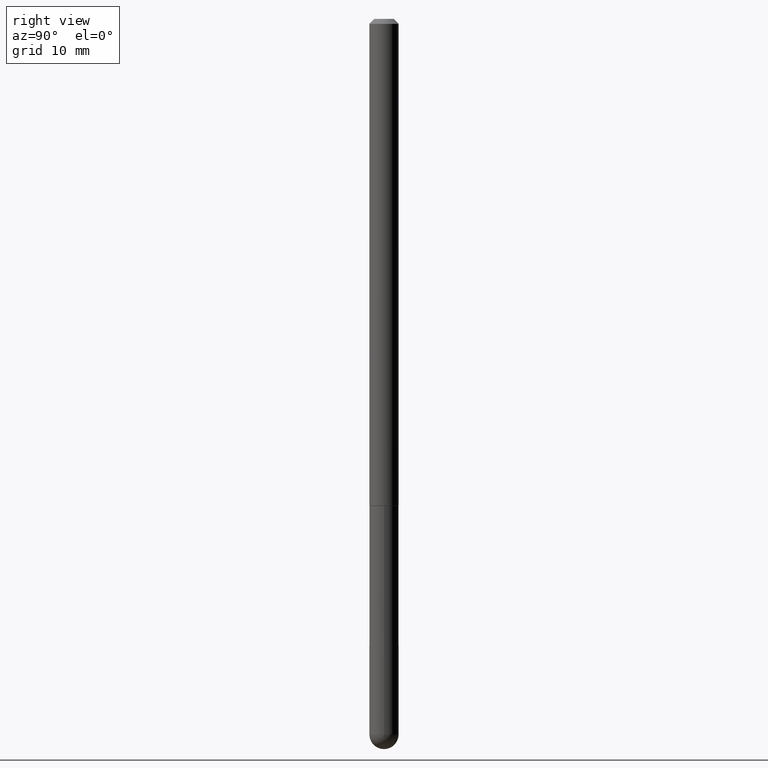
[diagram: clean part render]
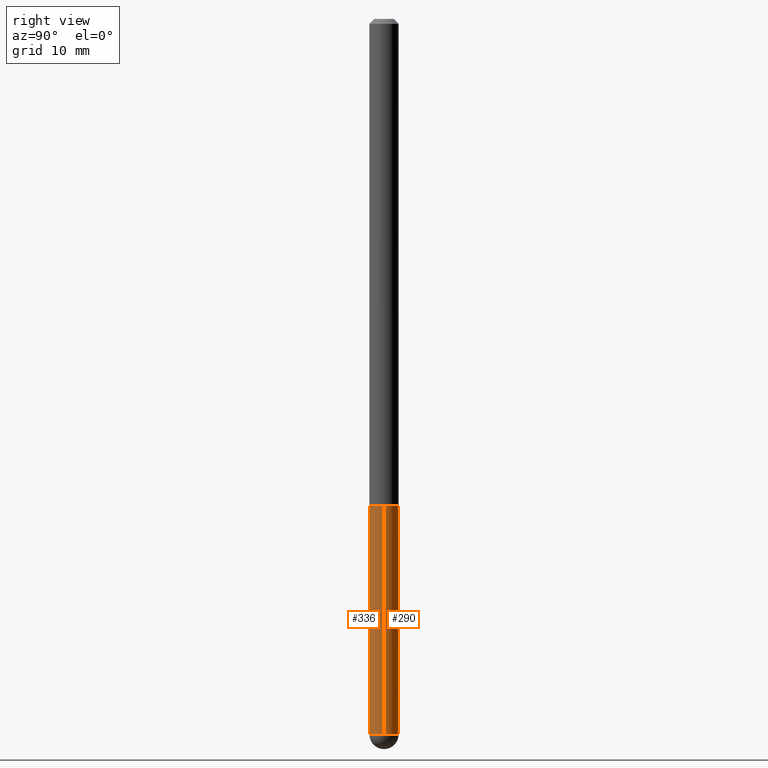
[diagram: same view with one multi-face feature highlighted, each face labeled with its STEP entity id]
A machine part, right view. The highlighted faces form ONE feature: a constant-radius fillet chain: 2 tangent blend faces with common blend radius 1.4999 mm. The faces share edges in the B-rep.
Their STEP definitions:
[1] entity #336 (Cylinder):
#2 = CARTESIAN_POINT ( 'NONE',  ( -0.05905000000000001914, 4.195754854663392958E-16, -2.904631170795522943E-30 ) ) ;
#14 = DIRECTION ( 'NONE',  ( -2.445468806185136597E-29, 3.491481338843145583E-15, 1.000000000000000000 ) ) ;
#27 = LINE ( 'NONE', #374, #154 ) ;
#30 = VERTEX_POINT ( 'NONE', #35 ) ;
#35 = CARTESIAN_POINT ( 'NONE',  ( -0.05905000000000001914, -8.068652084428701697E-15, -1.968499999999999694 ) ) ;
#40 = VECTOR ( 'NONE', #97, 39.37007874015748143 ) ;
#45 = ORIENTED_EDGE ( 'NONE', *, *, #222, .F. ) ;
#50 = AXIS2_PLACEMENT_3D ( 'NONE', #168, #115, #96 ) ;
#56 = VERTEX_POINT ( 'NONE', #151 ) ;
#75 = DIRECTION ( 'NONE',  ( 1.000000000000000000, -6.982962677686270655E-15, 0.000000000000000000 ) ) ;
#86 = DIRECTION ( 'NONE',  ( -2.445468806185136597E-29, 3.491481338843145583E-15, 1.000000000000000000 ) ) ;
#96 = DIRECTION ( 'NONE',  ( 1.000000000000000000, -6.982962677686266711E-15, 4.876176775795935793E-29 ) ) ;
#97 = DIRECTION ( 'NONE',  ( -2.445468806185136877E-29, 3.491481338843145188E-15, 1.000000000000000000 ) ) ;
#113 = DIRECTION ( 'NONE',  ( -2.445468806185136597E-29, 3.491481338843145583E-15, 1.000000000000000000 ) ) ;
#114 = ORIENTED_EDGE ( 'NONE', *, *, #396, .T. ) ;
#115 = DIRECTION ( 'NONE',  ( -2.445468806185136597E-29, 3.491481338843145583E-15, 1.000000000000000000 ) ) ;
#124 = CARTESIAN_POINT ( 'NONE',  ( -4.195754854662709114E-16, -0.05905000000001047605, -2.893749999999999822 ) ) ;
#131 = AXIS2_PLACEMENT_3D ( 'NONE', #311, #86, #407 ) ;
#138 = DIRECTION ( 'NONE',  ( 1.000000000000000000, -6.982962677686270655E-15, 0.000000000000000000 ) ) ;
#151 = CARTESIAN_POINT ( 'NONE',  ( 0.05905000000000001914, -7.285324961630105839E-15, -1.968499999999999694 ) ) ;
#154 = VECTOR ( 'NONE', #282, 39.37007874015748143 ) ;
#159 = CIRCLE ( 'NONE', #131, 0.05905000000000001914 ) ;
#168 = CARTESIAN_POINT ( 'NONE',  ( 0.000000000000000000, 0.000000000000000000, 0.000000000000000000 ) ) ;
#182 = EDGE_CURVE ( 'NONE', #356, #305, #196, .T. ) ;
#193 = EDGE_CURVE ( 'NONE', #251, #56, #27, .T. ) ;
#196 = CIRCLE ( 'NONE', #217, 0.05905000000000001914 ) ;
#202 = FACE_OUTER_BOUND ( 'NONE', #326, .T. ) ;
#203 = ORIENTED_EDGE ( 'NONE', *, *, #182, .T. ) ;
#204 = CARTESIAN_POINT ( 'NONE',  ( 4.813905344975440714E-29, -6.872981015512730918E-15, -1.968499999999999694 ) ) ;
#207 = AXIS2_PLACEMENT_3D ( 'NONE', #204, #14, #75 ) ;
#217 = AXIS2_PLACEMENT_3D ( 'NONE', #405, #113, #138 ) ;
#222 = EDGE_CURVE ( 'NONE', #356, #30, #275, .T. ) ;
#227 = CARTESIAN_POINT ( 'NONE',  ( -0.05905000000000001914, -8.068652084428701697E-15, -2.893749999999999822 ) ) ;
#251 = VERTEX_POINT ( 'NONE', #354 ) ;
#275 = LINE ( 'NONE', #2, #40 ) ;
#282 = DIRECTION ( 'NONE',  ( -2.445468806185136877E-29, 3.491481338843145188E-15, 1.000000000000000000 ) ) ;
#305 = VERTEX_POINT ( 'NONE', #124 ) ;
#311 = CARTESIAN_POINT ( 'NONE',  ( 7.076575357898237682E-29, -1.010347412427735067E-14, -2.893749999999999822 ) ) ;
#326 = EDGE_LOOP ( 'NONE', ( #45, #203, #114, #339, #409 ) ) ;
#333 = EDGE_CURVE ( 'NONE', #30, #56, #412, .T. ) ;
#336 = ADVANCED_FACE ( 'NONE', ( #202 ), #338, .T. ) ;
#338 = CYLINDRICAL_SURFACE ( 'NONE', #50, 0.05905000000000001914 ) ;
#339 = ORIENTED_EDGE ( 'NONE', *, *, #193, .T. ) ;
#354 = CARTESIAN_POINT ( 'NONE',  ( 0.05905000000000001914, -8.900571516012416899E-15, -2.893749999999999822 ) ) ;
#356 = VERTEX_POINT ( 'NONE', #227 ) ;
#374 = CARTESIAN_POINT ( 'NONE',  ( 0.05905000000000001914, -4.123439461173741806E-16, 2.879382386107500921E-30 ) ) ;
#396 = EDGE_CURVE ( 'NONE', #305, #251, #159, .T. ) ;
#405 = CARTESIAN_POINT ( 'NONE',  ( 7.076575357898237682E-29, -1.010347412427735067E-14, -2.893749999999999822 ) ) ;
#407 = DIRECTION ( 'NONE',  ( 1.000000000000000000, -6.982962677686270655E-15, 0.000000000000000000 ) ) ;
#409 = ORIENTED_EDGE ( 'NONE', *, *, #333, .F. ) ;
#412 = CIRCLE ( 'NONE', #207, 0.05905000000000001914 ) ;
[2] entity #290 (Cylinder):
#1 = AXIS2_PLACEMENT_3D ( 'NONE', #47, #52, #175 ) ;
#2 = CARTESIAN_POINT ( 'NONE',  ( -0.05905000000000001914, 4.195754854663392958E-16, -2.904631170795522943E-30 ) ) ;
#10 = DIRECTION ( 'NONE',  ( 1.000000000000000000, -6.982962677686266711E-15, 4.876176775795935793E-29 ) ) ;
#27 = LINE ( 'NONE', #374, #154 ) ;
#28 = ORIENTED_EDGE ( 'NONE', *, *, #402, .T. ) ;
#30 = VERTEX_POINT ( 'NONE', #35 ) ;
#35 = CARTESIAN_POINT ( 'NONE',  ( -0.05905000000000001914, -8.068652084428701697E-15, -1.968499999999999694 ) ) ;
#40 = VECTOR ( 'NONE', #97, 39.37007874015748143 ) ;
#41 = CYLINDRICAL_SURFACE ( 'NONE', #237, 0.05905000000000001914 ) ;
#43 = CIRCLE ( 'NONE', #1, 0.05905000000000001914 ) ;
#47 = CARTESIAN_POINT ( 'NONE',  ( 7.076575357898237682E-29, -1.010347412427735067E-14, -2.893749999999999822 ) ) ;
#52 = DIRECTION ( 'NONE',  ( -2.445468806185136597E-29, 3.491481338843145583E-15, 1.000000000000000000 ) ) ;
#56 = VERTEX_POINT ( 'NONE', #151 ) ;
#59 = AXIS2_PLACEMENT_3D ( 'NONE', #157, #148, #293 ) ;
#65 = DIRECTION ( 'NONE',  ( -2.445468806185136597E-29, 3.491481338843145583E-15, 1.000000000000000000 ) ) ;
#66 = CIRCLE ( 'NONE', #59, 0.05905000000000001914 ) ;
#69 = EDGE_CURVE ( 'NONE', #251, #206, #43, .T. ) ;
#85 = CARTESIAN_POINT ( 'NONE',  ( 4.123439461174440441E-16, 0.05904999999998979815, -2.893749999999999822 ) ) ;
#97 = DIRECTION ( 'NONE',  ( -2.445468806185136877E-29, 3.491481338843145188E-15, 1.000000000000000000 ) ) ;
#104 = ORIENTED_EDGE ( 'NONE', *, *, #69, .T. ) ;
#148 = DIRECTION ( 'NONE',  ( -2.445468806185136597E-29, 3.491481338843145583E-15, 1.000000000000000000 ) ) ;
#151 = CARTESIAN_POINT ( 'NONE',  ( 0.05905000000000001914, -7.285324961630105839E-15, -1.968499999999999694 ) ) ;
#154 = VECTOR ( 'NONE', #282, 39.37007874015748143 ) ;
#155 = ORIENTED_EDGE ( 'NONE', *, *, #254, .F. ) ;
#156 = FACE_OUTER_BOUND ( 'NONE', #410, .T. ) ;
#157 = CARTESIAN_POINT ( 'NONE',  ( 7.076575357898237682E-29, -1.010347412427735067E-14, -2.893749999999999822 ) ) ;
#161 = CARTESIAN_POINT ( 'NONE',  ( 0.000000000000000000, 0.000000000000000000, 0.000000000000000000 ) ) ;
#175 = DIRECTION ( 'NONE',  ( 1.000000000000000000, -6.982962677686270655E-15, 0.000000000000000000 ) ) ;
#193 = EDGE_CURVE ( 'NONE', #251, #56, #27, .T. ) ;
#206 = VERTEX_POINT ( 'NONE', #85 ) ;
#222 = EDGE_CURVE ( 'NONE', #356, #30, #275, .T. ) ;
#227 = CARTESIAN_POINT ( 'NONE',  ( -0.05905000000000001914, -8.068652084428701697E-15, -2.893749999999999822 ) ) ;
#237 = AXIS2_PLACEMENT_3D ( 'NONE', #161, #299, #10 ) ;
#251 = VERTEX_POINT ( 'NONE', #354 ) ;
#254 = EDGE_CURVE ( 'NONE', #56, #30, #337, .T. ) ;
#275 = LINE ( 'NONE', #2, #40 ) ;
#278 = ORIENTED_EDGE ( 'NONE', *, *, #222, .T. ) ;
#282 = DIRECTION ( 'NONE',  ( -2.445468806185136877E-29, 3.491481338843145188E-15, 1.000000000000000000 ) ) ;
#290 = ADVANCED_FACE ( 'NONE', ( #156 ), #41, .T. ) ;
#293 = DIRECTION ( 'NONE',  ( 1.000000000000000000, -6.982962677686270655E-15, 0.000000000000000000 ) ) ;
#299 = DIRECTION ( 'NONE',  ( -2.445468806185136597E-29, 3.491481338843145583E-15, 1.000000000000000000 ) ) ;
#308 = ORIENTED_EDGE ( 'NONE', *, *, #193, .F. ) ;
#324 = AXIS2_PLACEMENT_3D ( 'NONE', #411, #65, #349 ) ;
#337 = CIRCLE ( 'NONE', #324, 0.05905000000000001914 ) ;
#349 = DIRECTION ( 'NONE',  ( 1.000000000000000000, -6.982962677686270655E-15, 0.000000000000000000 ) ) ;
#354 = CARTESIAN_POINT ( 'NONE',  ( 0.05905000000000001914, -8.900571516012416899E-15, -2.893749999999999822 ) ) ;
#356 = VERTEX_POINT ( 'NONE', #227 ) ;
#374 = CARTESIAN_POINT ( 'NONE',  ( 0.05905000000000001914, -4.123439461173741806E-16, 2.879382386107500921E-30 ) ) ;
#402 = EDGE_CURVE ( 'NONE', #206, #356, #66, .T. ) ;
#410 = EDGE_LOOP ( 'NONE', ( #28, #278, #155, #308, #104 ) ) ;
#411 = CARTESIAN_POINT ( 'NONE',  ( 4.813905344975440714E-29, -6.872981015512730918E-15, -1.968499999999999694 ) ) ;